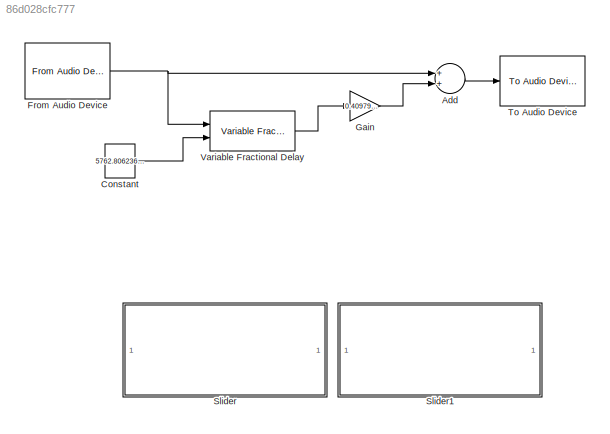
MODEL slx_86d028cfc777
KIND model
CONFIG AbsTol = auto
CONFIG EnableMultiTasking = off
CONFIG FixedStep = auto
CONFIG MaxStep = auto
CONFIG MinStep = auto
CONFIG RelTol = 1e-3
CONFIG SampleTimeConstraint = Unconstrained
CONFIG Solver = VariableStepAuto
CONFIG SolverName = VariableStepAuto
CONFIG StartTime = 0.0
CONFIG StopTime = inf
BLOCK [Sum] Add
  InputSameDT = off
  OutDataTypeStr = Inherit: Inherit via internal rule
  Ports = [2, 1]
  SaturateOnIntegerOverflow = off
BLOCK [Constant] Constant
  Value = 5762.8062360802
  VectorParams1D = off
BLOCK [Reference] From Audio Device  REF=dspobslib/From Audio
Device
  Ports = [0, 1]
  SourceBlock = dspobslib/From Audio\nDevice
  SourceProductBaseCode = DS
  SourceProductName = DSP System Toolbox
  SourceType = From Audio Device
BLOCK [Gain] Gain
  Gain = 0.4097995545657
  OutDataTypeStr = Inherit: Inherit via internal rule
  ParamDataTypeStr = Inherit: Inherit via internal rule
  SaturateOnIntegerOverflow = off
BLOCK [SubSystem] Slider
  DialogController = hmiCreateDDGDialog
  IsWebBlock = on
  MaskHideContents = on
  Ports = []
  RequestExecContextInheritance = off
  Variant = off
BLOCK [SubSystem] Slider1
  DialogController = hmiCreateDDGDialog
  IsWebBlock = on
  MaskHideContents = on
  Ports = []
  RequestExecContextInheritance = off
  Variant = off
BLOCK [Reference] To Audio Device  REF=dspobslib/To Audio
Device
  Ports = [1]
  SourceBlock = dspobslib/To Audio\nDevice
  SourceProductBaseCode = DS
  SourceProductName = DSP System Toolbox
  SourceType = To Audio Device
BLOCK [Reference] Variable Fractional Delay  REF=dspsigops/Variable
Fractional Delay
  Ports = [2, 1]
  SourceBlock = dspsigops/Variable\nFractional Delay
  SourceProductBaseCode = DS
  SourceProductName = DSP System Toolbox
  SourceType = Variable Fractional Delay
  UserDataPersistent = on
LINE Add:1 -> To Audio Device:1
LINE Constant:1 -> Variable Fractional Delay:2
NET From Audio Device:1 -> Add:1, Variable Fractional Delay:1
LINE Gain:1 -> Add:2
LINE Variable Fractional Delay:1 -> Gain:1
note: NET lines group one-source signal fan-out (src -> all destinations, sorted); 1:1 wires keep LINE
